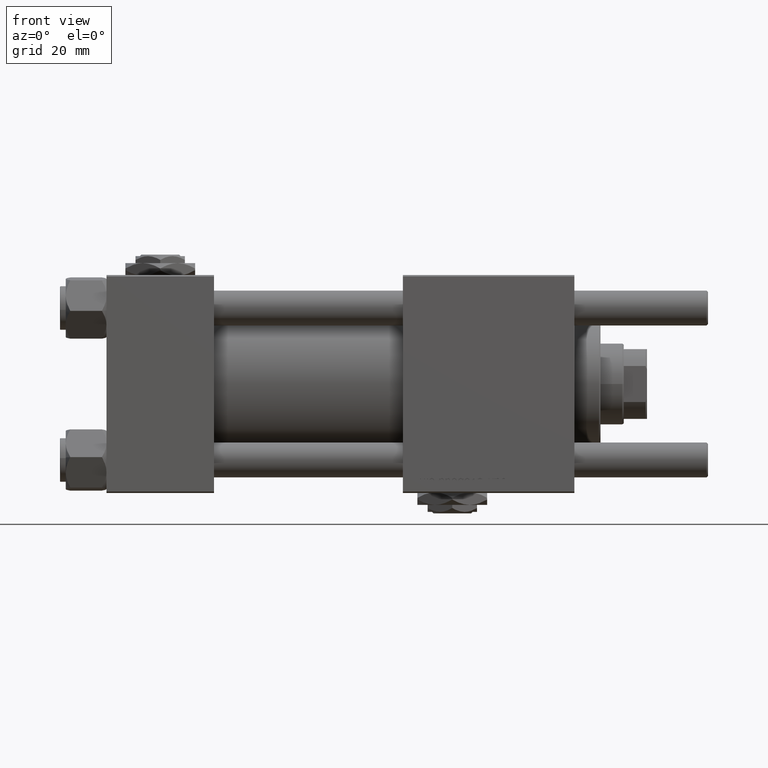
[diagram: clean part render]
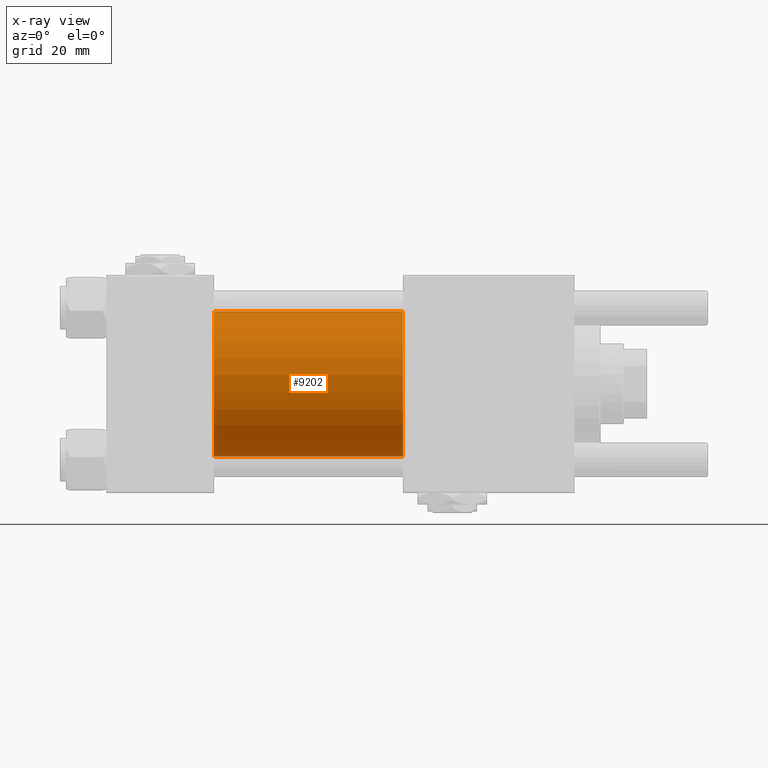
[diagram: x-ray — body ghosted, one internal face saturated and labeled with its STEP entity id]
A machine part, front view, then the same camera in x-ray: the body is ghosted and one INTERNAL B-rep face — a face not visible from any outside direction — is saturated and labeled: STEP entity #9202.
In plain terms, the highlighted cylindrical surface (partial cylindrical patch) has radius 25 mm, axis along (-1, -0, -0).
Its self-contained STEP definition (entity closure, byte-faithful):
#3587 = CARTESIAN_POINT ( 'NONE',  ( 102.0000000000000142, -2.602085213965210642E-15, 0.000000000000000000 ) ) ;
#4277 = CARTESIAN_POINT ( 'NONE',  ( 102.0000000000000142, -2.602085213965210642E-15, 25.00000000000000000 ) ) ;
#4490 = VERTEX_POINT ( 'NONE', #14775 ) ;
#6894 = AXIS2_PLACEMENT_3D ( 'NONE', #3587, #43983, #21384 ) ;
#9202 = ADVANCED_FACE ( 'NONE', ( #39310 ), #38731, .F. ) ;
#9477 = ORIENTED_EDGE ( 'NONE', *, *, #50816, .T. ) ;
#10291 = VERTEX_POINT ( 'NONE', #4277 ) ;
#10390 = LINE ( 'NONE', #45743, #13630 ) ;
#10452 = EDGE_CURVE ( 'NONE', #16454, #19307, #25041, .T. ) ;
#13095 = DIRECTION ( 'NONE',  ( 1.000000000000000000, 0.000000000000000000, 0.000000000000000000 ) ) ;
#13630 = VECTOR ( 'NONE', #23150, 1000.000000000000000 ) ;
#14775 = CARTESIAN_POINT ( 'NONE',  ( 102.0000000000000142, 4.595317839031724996E-16, -25.00000000000000000 ) ) ;
#16147 = DIRECTION ( 'NONE',  ( 0.000000000000000000, 0.000000000000000000, 1.000000000000000000 ) ) ;
#16377 = EDGE_CURVE ( 'NONE', #10291, #4490, #38188, .T. ) ;
#16454 = VERTEX_POINT ( 'NONE', #49315 ) ;
#16738 = CARTESIAN_POINT ( 'NONE',  ( 102.0000000000000142, -2.602085213965210642E-15, 0.000000000000000000 ) ) ;
#16968 = CARTESIAN_POINT ( 'NONE',  ( 37.00000000000000000, -2.602085213965210642E-15, 0.000000000000000000 ) ) ;
#17427 = EDGE_LOOP ( 'NONE', ( #46232, #9477, #37453, #49889 ) ) ;
#19307 = VERTEX_POINT ( 'NONE', #30235 ) ;
#20019 = DIRECTION ( 'NONE',  ( -1.000000000000000000, -0.000000000000000000, -0.000000000000000000 ) ) ;
#21384 = DIRECTION ( 'NONE',  ( 0.000000000000000000, 0.000000000000000000, -1.000000000000000000 ) ) ;
#23077 = VECTOR ( 'NONE', #31185, 1000.000000000000000 ) ;
#23150 = DIRECTION ( 'NONE',  ( -1.000000000000000000, -0.000000000000000000, -0.000000000000000000 ) ) ;
#25041 = CIRCLE ( 'NONE', #38327, 25.00000000000000000 ) ;
#30235 = CARTESIAN_POINT ( 'NONE',  ( 37.00000000000000000, 4.595317839031724996E-16, -25.00000000000000000 ) ) ;
#31185 = DIRECTION ( 'NONE',  ( -1.000000000000000000, -0.000000000000000000, -0.000000000000000000 ) ) ;
#31472 = CARTESIAN_POINT ( 'NONE',  ( 102.0000000000000142, 4.595317839031724996E-16, -25.00000000000000000 ) ) ;
#35641 = LINE ( 'NONE', #31472, #23077 ) ;
#37453 = ORIENTED_EDGE ( 'NONE', *, *, #10452, .F. ) ;
#38188 = CIRCLE ( 'NONE', #6894, 25.00000000000000000 ) ;
#38327 = AXIS2_PLACEMENT_3D ( 'NONE', #16968, #13095, #44309 ) ;
#38731 = CYLINDRICAL_SURFACE ( 'NONE', #52519, 25.00000000000000000 ) ;
#39310 = FACE_OUTER_BOUND ( 'NONE', #17427, .T. ) ;
#43983 = DIRECTION ( 'NONE',  ( 1.000000000000000000, 0.000000000000000000, 0.000000000000000000 ) ) ;
#44309 = DIRECTION ( 'NONE',  ( 0.000000000000000000, 0.000000000000000000, -1.000000000000000000 ) ) ;
#45743 = CARTESIAN_POINT ( 'NONE',  ( 102.0000000000000142, -2.602085213965210642E-15, 25.00000000000000000 ) ) ;
#46232 = ORIENTED_EDGE ( 'NONE', *, *, #16377, .T. ) ;
#49315 = CARTESIAN_POINT ( 'NONE',  ( 37.00000000000000000, -2.602085213965210642E-15, 25.00000000000000000 ) ) ;
#49889 = ORIENTED_EDGE ( 'NONE', *, *, #51879, .F. ) ;
#50816 = EDGE_CURVE ( 'NONE', #4490, #19307, #35641, .T. ) ;
#51879 = EDGE_CURVE ( 'NONE', #10291, #16454, #10390, .T. ) ;
#52519 = AXIS2_PLACEMENT_3D ( 'NONE', #16738, #20019, #16147 ) ;